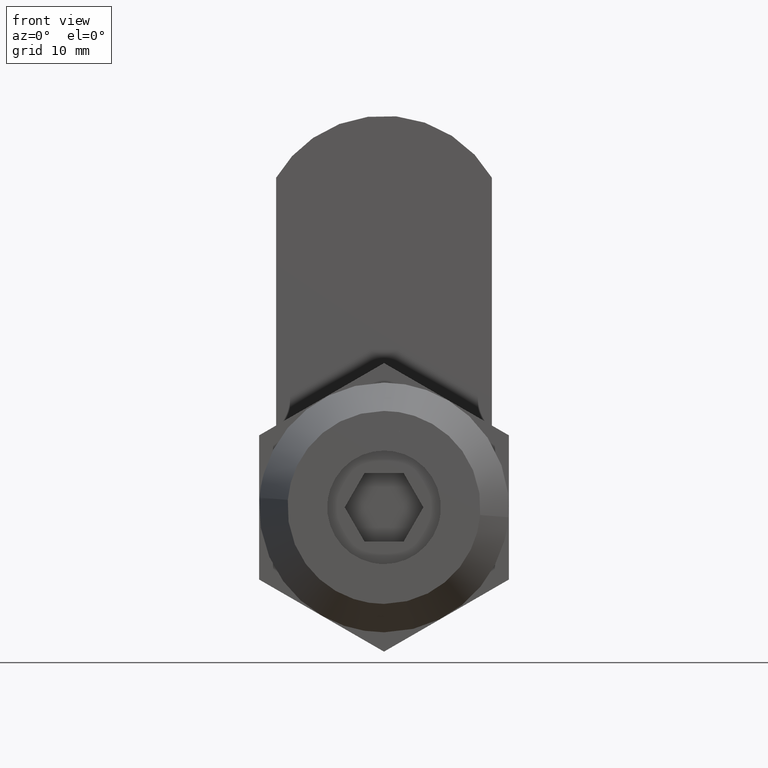
[diagram: clean part render]
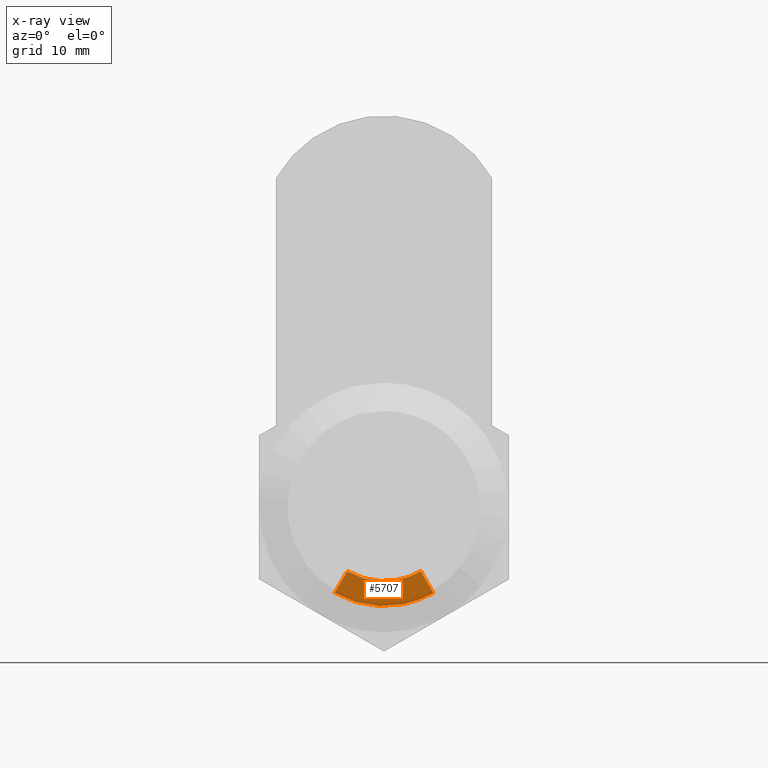
[diagram: x-ray — body ghosted, one internal face saturated and labeled with its STEP entity id]
A machine part, front view, then the same camera in x-ray: the body is ghosted and one INTERNAL B-rep face — a face not visible from any outside direction — is saturated and labeled: STEP entity #5707.
In plain terms, the highlighted face is a freeform B-spline surface patch.
Its self-contained STEP definition (entity closure, byte-faithful):
#5045=CARTESIAN_POINT('',(3.250544755507340,23.399999999999999,-5.628850574712720));
#5046=VERTEX_POINT('',#5045);
#5052=CARTESIAN_POINT('',(-3.250544755507345,23.399999999999999,-5.628850574712720));
#5053=VERTEX_POINT('',#5052);
#5054=CARTESIAN_POINT('',(-3.250544755507346,23.399999999999999,-5.628850574712720));
#5055=CARTESIAN_POINT('',(-4.853756E-015,23.400000000000006,-7.505972922750098));
#5056=CARTESIAN_POINT('',(3.250544755507336,23.399999999999999,-5.628850574712721));
#5064=(BOUNDED_CURVE()B_SPLINE_CURVE(2,(#5054,#5055,#5056),.UNSPECIFIED.,.F.,.U.)CURVE()GEOMETRIC_REPRESENTATION_ITEM()QUASI_UNIFORM_CURVE()RATIONAL_B_SPLINE_CURVE((1.0,0.865977011494265,1.0))REPRESENTATION_ITEM(''));
#5065=EDGE_CURVE('',#5053,#5046,#5064,.T.);
#5216=CARTESIAN_POINT('',(-4.350729134294450,23.399999999999999,-7.534000000000110));
#5217=VERTEX_POINT('',#5216);
#5218=CARTESIAN_POINT('',(-3.250544755507345,23.399999999999999,-5.628850574712720));
#5219=CARTESIAN_POINT('',(-4.350729134294450,23.399999999999999,-7.534000000000110));
#5220=QUASI_UNIFORM_CURVE('',1,(#5218,#5219),.UNSPECIFIED.,.F.,.U.);
#5221=EDGE_CURVE('',#5053,#5217,#5220,.T.);
#5239=CARTESIAN_POINT('',(4.350729134294440,23.399999999999999,-7.534000000000110));
#5240=VERTEX_POINT('',#5239);
#5246=CARTESIAN_POINT('',(4.350729134294440,23.399999999999999,-7.534000000000110));
#5247=CARTESIAN_POINT('',(3.250544755507340,23.399999999999999,-5.628850574712720));
#5248=QUASI_UNIFORM_CURVE('',1,(#5246,#5247),.UNSPECIFIED.,.F.,.U.);
#5249=EDGE_CURVE('',#5240,#5046,#5248,.T.);
#5680=CARTESIAN_POINT('',(-4.350729134294445,23.399999999999999,-7.534000000000101));
#5681=CARTESIAN_POINT('',(-6.154799E-015,23.399999999999999,-10.046456065834747));
#5682=CARTESIAN_POINT('',(4.350729134294436,23.399999999999999,-7.534000000000103));
#5690=(BOUNDED_CURVE()B_SPLINE_CURVE(2,(#5680,#5681,#5682),.UNSPECIFIED.,.F.,.U.)CURVE()GEOMETRIC_REPRESENTATION_ITEM()QUASI_UNIFORM_CURVE()RATIONAL_B_SPLINE_CURVE((1.0,0.865977011494265,1.0))REPRESENTATION_ITEM(''));
#5691=EDGE_CURVE('',#5217,#5240,#5690,.T.);
#5696=CARTESIAN_POINT('',(-4.785366763491500,23.399999999999999,-5.475446533695640));
#5697=CARTESIAN_POINT('',(-4.785366763491500,23.399999999999999,-8.853403766434903));
#5698=CARTESIAN_POINT('',(4.785366530100193,23.399999999999999,-5.475446533695640));
#5699=CARTESIAN_POINT('',(4.785366530100193,23.399999999999999,-8.853403766434903));
#5700=B_SPLINE_SURFACE_WITH_KNOTS('',1,1,((#5696,#5698),(#5697,#5699)),.UNSPECIFIED.,.F.,.F.,.U.,(2,2),(2,2),(0.0,3.377957232739263),(0.0,9.570733293591694),.UNSPECIFIED.);
#5701=ORIENTED_EDGE('',*,*,#5249,.F.);
#5702=ORIENTED_EDGE('',*,*,#5691,.F.);
#5703=ORIENTED_EDGE('',*,*,#5221,.F.);
#5704=ORIENTED_EDGE('',*,*,#5065,.T.);
#5705=EDGE_LOOP('',(#5701,#5702,#5703,#5704));
#5706=FACE_OUTER_BOUND('',#5705,.T.);
#5707=ADVANCED_FACE('',(#5706),#5700,.F.);